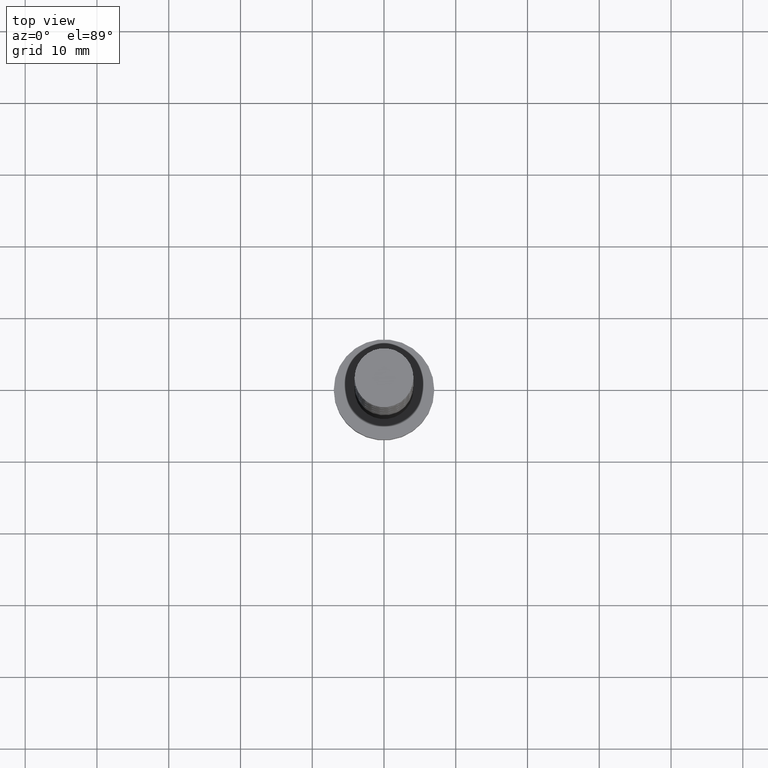
[diagram: clean part render]
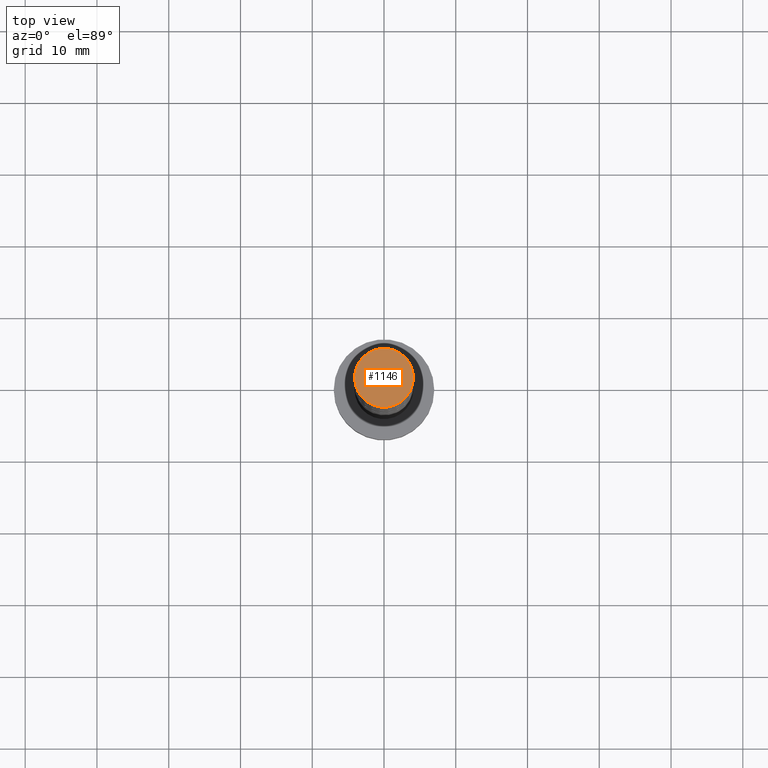
[diagram: same view with one face highlighted and labeled with its STEP entity id]
A machine part, top view. The second image highlights one B-rep face of the part: STEP entity #1146.
In plain terms, the highlighted planar face has unit normal (0, 0, 1).
Its self-contained STEP definition (entity closure, byte-faithful):
#73 = CARTESIAN_POINT ( 'NONE',  ( 0.000000000000000000, 0.000000000000000000, 100.0000000000000000 ) ) ;
#96 = CIRCLE ( 'NONE', #1340, 4.099999999999999645 ) ;
#124 = EDGE_CURVE ( 'NONE', #653, #910, #889, .T. ) ;
#128 = DIRECTION ( 'NONE',  ( 0.000000000000000000, 0.000000000000000000, 1.000000000000000000 ) ) ;
#209 = ORIENTED_EDGE ( 'NONE', *, *, #124, .T. ) ;
#342 = EDGE_LOOP ( 'NONE', ( #961, #209 ) ) ;
#364 = DIRECTION ( 'NONE',  ( 0.000000000000000000, 0.000000000000000000, 1.000000000000000000 ) ) ;
#426 = FACE_OUTER_BOUND ( 'NONE', #342, .T. ) ;
#457 = AXIS2_PLACEMENT_3D ( 'NONE', #1206, #128, #467 ) ;
#467 = DIRECTION ( 'NONE',  ( 1.000000000000000000, 0.000000000000000000, 0.000000000000000000 ) ) ;
#596 = CARTESIAN_POINT ( 'NONE',  ( 4.099999999999999645, 5.021051876504147385E-16, 100.0000000000000000 ) ) ;
#620 = DIRECTION ( 'NONE',  ( 1.000000000000000000, 0.000000000000000000, -0.000000000000000000 ) ) ;
#628 = CARTESIAN_POINT ( 'NONE',  ( -4.099999999999999645, 0.000000000000000000, 100.0000000000000000 ) ) ;
#653 = VERTEX_POINT ( 'NONE', #596 ) ;
#765 = PLANE ( 'NONE',  #895 ) ;
#889 = CIRCLE ( 'NONE', #457, 4.099999999999999645 ) ;
#895 = AXIS2_PLACEMENT_3D ( 'NONE', #73, #969, #620 ) ;
#910 = VERTEX_POINT ( 'NONE', #628 ) ;
#938 = CARTESIAN_POINT ( 'NONE',  ( 0.000000000000000000, 0.000000000000000000, 100.0000000000000000 ) ) ;
#953 = DIRECTION ( 'NONE',  ( 1.000000000000000000, 0.000000000000000000, 0.000000000000000000 ) ) ;
#961 = ORIENTED_EDGE ( 'NONE', *, *, #1476, .T. ) ;
#969 = DIRECTION ( 'NONE',  ( 0.000000000000000000, 0.000000000000000000, 1.000000000000000000 ) ) ;
#1146 = ADVANCED_FACE ( 'NONE', ( #426 ), #765, .T. ) ;
#1206 = CARTESIAN_POINT ( 'NONE',  ( 0.000000000000000000, 0.000000000000000000, 100.0000000000000000 ) ) ;
#1340 = AXIS2_PLACEMENT_3D ( 'NONE', #938, #364, #953 ) ;
#1476 = EDGE_CURVE ( 'NONE', #910, #653, #96, .T. ) ;